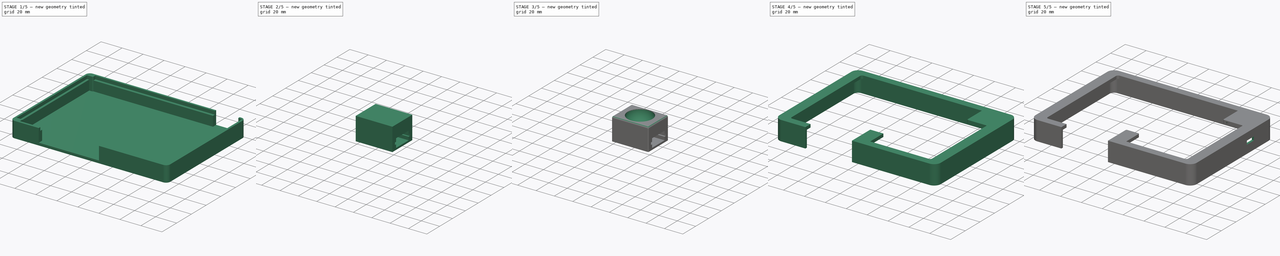
[diagram: build sequence overview — one tinted view per stage of 5, left to right]
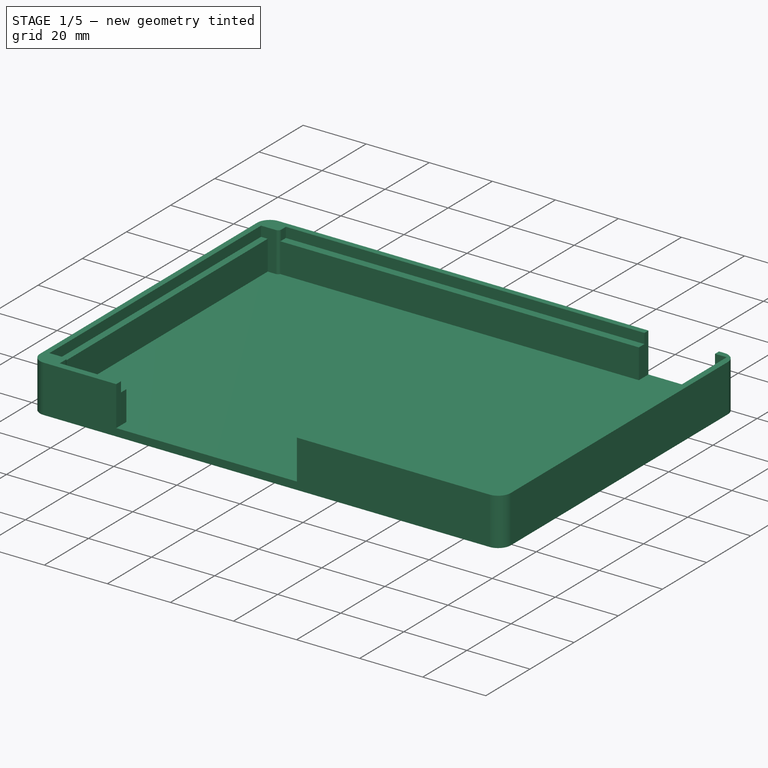
[diagram: stage 1 of 5 — iso view after this stage's code; geometry added in this stage tinted green]
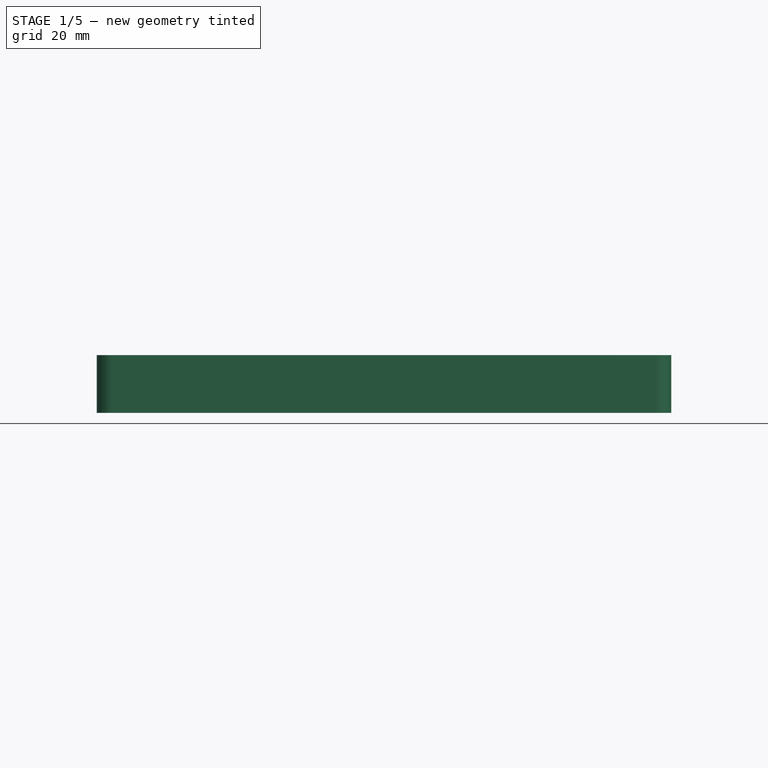
[diagram: stage 1 of 5 — front view after this stage's code; geometry added in this stage tinted green]
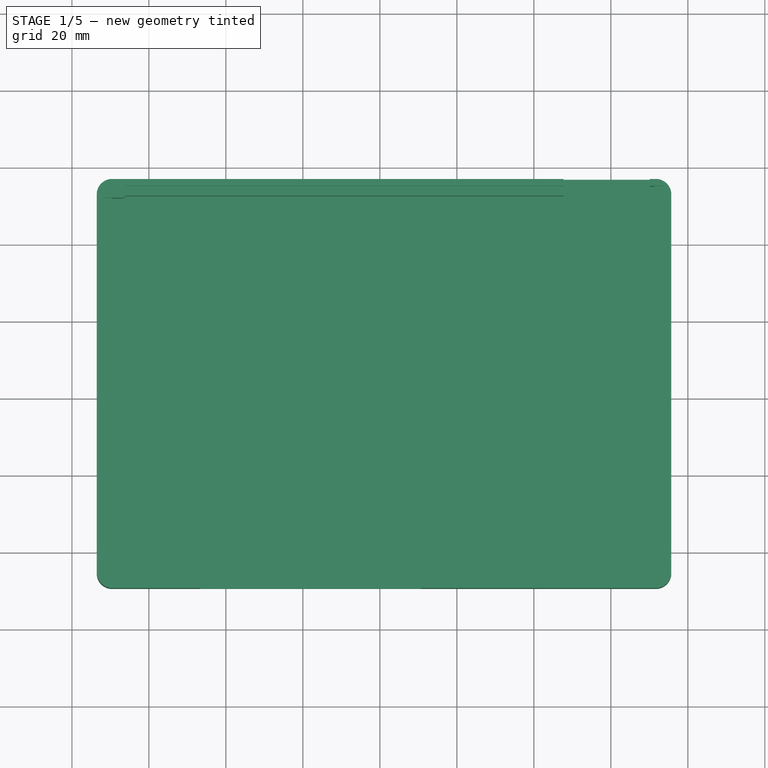
[diagram: stage 1 of 5 — top view after this stage's code; geometry added in this stage tinted green]
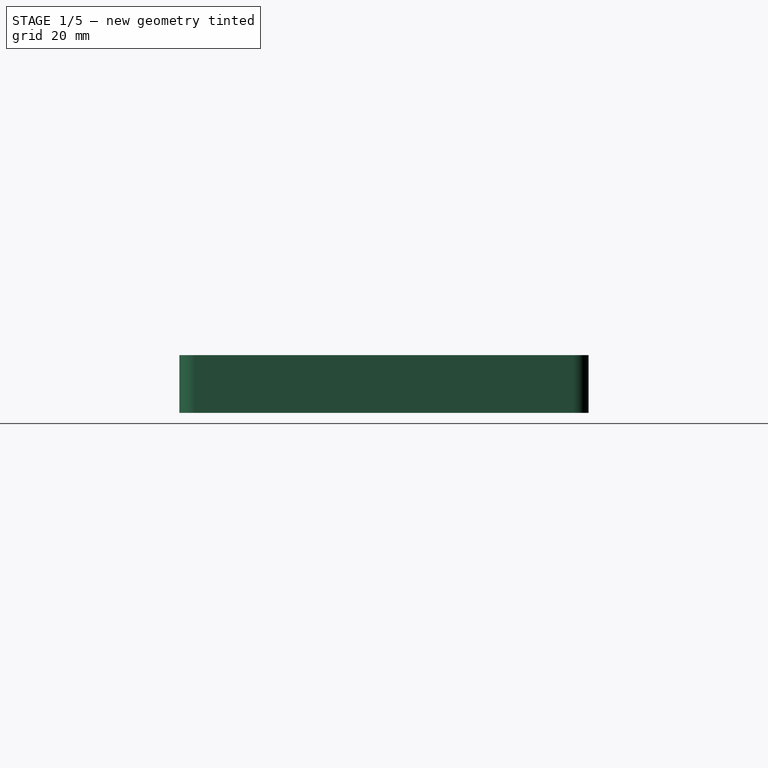
[diagram: stage 1 of 5 — right view after this stage's code; geometry added in this stage tinted green]
FCSTD DOCUMENT  (FreeCAD 1.0R39109 (Git))
Label: right_v1
License: All rights reserved
LicenseURL: https://en.wikipedia.org/wiki/All_rights_reserved
objects: Sketcher::SketchObject×15, PartDesign::Pocket×7, Measure::MeasureLength×7, PartDesign::Pad×6, PartDesign::Fillet×6, PartDesign::ShapeBinder×4, PartDesign::Body×3, Measure::MeasureDistance×3, PartDesign::SubShapeBinder×1, PartDesign::Line×1, Part::Feature×1, App::Part×1, PartDesign::Groove×1, PartDesign::Point×1, PartDesign::SubtractiveSphere×1, PartDesign::PolarPattern×1, App::DocumentObjectGroup×1
note: 106 computed .brp shape members not serialized (recipe doc carries the construction recipe); baked Part::Feature solids carry a one-line shape summary decoded from their .brp

FEATURE [Sketcher::SketchObject] Sketch
  ArcFitTolerance = 1e-06
  FullyConstrained = false
  MakeInternals = false
  sketch-geometry (21):
    g0: LineSegment StartX=230.1 StartY=-24.9 StartZ=0 EndX=233.8 EndY=-24.9 EndZ=0
    g1: LineSegment StartX=207.7 StartY=-23.1 StartZ=0 EndX=230.1 EndY=-23.1 EndZ=0
    g2: LineSegment StartX=207.7 StartY=-24.9 StartZ=0 EndX=207.7 EndY=-23.1 EndZ=0
    g3: LineSegment StartX=230.1 StartY=-24.9 StartZ=0 EndX=230.1 EndY=-23.1 EndZ=0
    g4: LineSegment StartX=228 StartY=-127.2 StartZ=0 EndX=228 EndY=-125 EndZ=0
    g5: LineSegment StartX=233.8 StartY=-124 StartZ=0 EndX=233.8 EndY=-24.9 EndZ=0
    g6: LineSegment StartX=93 StartY=-28 StartZ=0 EndX=88.3 EndY=-28 EndZ=0
    g7: LineSegment StartX=88.3 StartY=-28 StartZ=0 EndX=88.2 EndY=-123.7 EndZ=0
    g8: LineSegment StartX=88.2 StartY=-123.7 StartZ=0 EndX=93 EndY=-123.7 EndZ=0
    g9: LineSegment StartX=170.5 StartY=-104.4 StartZ=0 EndX=170.5 EndY=-127.2 EndZ=0
    g10: LineSegment StartX=113.4 StartY=-127.2 StartZ=0 EndX=113.5 EndY=-104.4 EndZ=0
    g11: LineSegment StartX=94 StartY=-24.9 StartZ=0 EndX=94 EndY=-27 EndZ=0
    g12: LineSegment StartX=94 StartY=-127.3 StartZ=0 EndX=113.4 EndY=-127.2 EndZ=0
    g13: LineSegment StartX=94 StartY=-124.7 StartZ=0 EndX=94 EndY=-127.3 EndZ=0
    g14: LineSegment StartX=207.7 StartY=-24.9 StartZ=0 EndX=94 EndY=-24.9 EndZ=0
    g15: LineSegment StartX=170.5 StartY=-127.2 StartZ=0 EndX=228 EndY=-127.2 EndZ=0
    g16: LineSegment StartX=233.8 StartY=-124 StartZ=0 EndX=229 EndY=-124 EndZ=0
    g17: LineSegment StartX=113.5 StartY=-104.4 StartZ=0 EndX=170.5 EndY=-104.4 EndZ=0
    g18: ArcOfCircle CenterX=229 CenterY=-125 CenterZ=0 NormalX=0 NormalY=0 NormalZ=1 AngleXU=0 Radius=0.999998 StartAngle=1.5708 EndAngle=3.14159
    g19: ArcOfCircle CenterX=93 CenterY=-124.7 CenterZ=0 NormalX=0 NormalY=0 NormalZ=1 AngleXU=0 Radius=0.999998 StartAngle=0 EndAngle=1.5708
    g20: ArcOfCircle CenterX=93 CenterY=-27 CenterZ=0 NormalX=0 NormalY=0 NormalZ=1 AngleXU=0 Radius=0.999998 StartAngle=4.71239 EndAngle=6.28319
  constraints (15):
    c: Horizontal(g0)
    c: Horizontal(g1)
    c: Vertical(g2)
    c: Vertical(g3)
    c: Vertical(g4)
    c: Vertical(g5)
    c: Horizontal(g6)
    c: Horizontal(g8)
    c: Vertical(g9)
    c: Vertical(g11)
    c: Vertical(g13)
    c: Horizontal(g14)
    c: Horizontal(g15)
    c: Horizontal(g16)
    c: Horizontal(g17)
FEATURE [Sketcher::SketchObject] Sketch001
  ArcFitTolerance = 1e-06
  FullyConstrained = true
  MakeInternals = false
  sketch-geometry (8):
    g0: LineSegment StartX=231.7 StartY=-23.1 StartZ=0 EndX=90.44 EndY=-23.1 EndZ=0
    g1: LineSegment StartX=235.7 StartY=-27.1 StartZ=0 EndX=235.7 EndY=-125.39 EndZ=0
    g2: LineSegment StartX=90.44 StartY=-129.39 StartZ=0 EndX=231.7 EndY=-129.39 EndZ=0
    g3: LineSegment StartX=86.44 StartY=-27.1 StartZ=0 EndX=86.44 EndY=-125.39 EndZ=0
    g4: ArcOfCircle CenterX=90.44 CenterY=-125.39 CenterZ=0 NormalX=0 NormalY=0 NormalZ=1 AngleXU=0 Radius=4 StartAngle=3.14159 EndAngle=4.71239
    g5: ArcOfCircle CenterX=90.44 CenterY=-27.1 CenterZ=0 NormalX=0 NormalY=0 NormalZ=1 AngleXU=0 Radius=4 StartAngle=1.5708 EndAngle=3.14159
    g6: ArcOfCircle CenterX=231.7 CenterY=-27.1 CenterZ=0 NormalX=0 NormalY=0 NormalZ=1 AngleXU=0 Radius=4 StartAngle=0 EndAngle=1.5708
    g7: ArcOfCircle CenterX=231.7 CenterY=-125.39 CenterZ=0 NormalX=0 NormalY=0 NormalZ=1 AngleXU=0 Radius=4 StartAngle=4.71239 EndAngle=6.28319
  constraints (20):
    c: Horizontal(g0)
    c: Vertical(g1)
    c: Vertical(g3)
    c: Radius(g5) = 4
    c: Radius(g4) = 4
    c: Radius(g7) = 4
    c: Radius(g6) = 4
    c: Horizontal(g2)
    c: Tangent(g5,g0) = -1.5708
    c: Tangent(g5,g3) = -1.5708
    c: Tangent(g4,g3) = -1.5708
    c: Tangent(g4,g2) = -1.5708
    c: Tangent(g7,g2) = -1.5708
    c: Tangent(g7,g1) = 1.5708
    c: Tangent(g6,g1) = 1.5708
    c: Tangent(g6,g0) = -1.5708
    c: DistanceX(g0,g0) = 141.26
    c: DistanceY(g3,g3) = 98.29
    c: DistanceY(g0,g-1) = 23.1
    c: DistanceX(g-1,g3) = 86.44
FEATURE [PartDesign::Pad] Pad
  Direction = (0,0,1)
  Length = 15
  Length2 = 10
  Profile = -> Sketch001
  ReferenceAxis = -> Sketch001 [N_Axis]
  Refine = true
  Reversed = true
  Suppressed = false
  Type = 0
FEATURE [Sketcher::SketchObject] Sketch002
  ArcFitTolerance = 1e-06
  FullyConstrained = false
  MakeInternals = false
  MapMode = 5
  sketch-geometry (4):
    g0: LineSegment StartX=113.359 StartY=-104.168 StartZ=0 EndX=113.359 EndY=-130.997 EndZ=0
    g1: LineSegment StartX=113.359 StartY=-130.997 StartZ=0 EndX=170.657 EndY=-130.997 EndZ=0
    g2: LineSegment StartX=170.657 StartY=-130.997 StartZ=0 EndX=170.657 EndY=-104.168 EndZ=0
    g3: LineSegment StartX=170.657 StartY=-104.168 StartZ=0 EndX=113.359 EndY=-104.168 EndZ=0
  constraints (8):
    c: Coincident(g0,g1)
    c: Coincident(g1,g2)
    c: Coincident(g2,g3)
    c: Coincident(g3,g0)
    c: Vertical(g0)
    c: Vertical(g2)
    c: Horizontal(g1)
    c: Horizontal(g3)
FEATURE [Sketcher::SketchObject] Sketch003
  ArcFitTolerance = 1e-06
  FullyConstrained = false
  MakeInternals = false
  MapMode = 5
  Placement = pos=(0,0,-12.6) rot=(0,0,1;0rad)
  sketch-geometry (20):
    g0: LineSegment StartX=87.9168 StartY=-27.7283 StartZ=0 EndX=87.9168 EndY=-124.349 EndZ=0
    g1: LineSegment StartX=87.9168 StartY=-124.349 StartZ=0 EndX=90.4168 EndY=-124.349 EndZ=0
    g2: LineSegment StartX=90.4168 StartY=-124.349 StartZ=0 EndX=90.4168 EndY=-27.7283 EndZ=0
    g3: LineSegment StartX=90.4168 StartY=-27.7283 StartZ=0 EndX=87.9168 EndY=-27.7283 EndZ=0
    g4: LineSegment StartX=93.9895 StartY=-24.8925 StartZ=0 EndX=93.9895 EndY=-27.3925 EndZ=0
    g5: LineSegment StartX=93.9895 StartY=-27.3925 StartZ=0 EndX=207.7 EndY=-27.3925 EndZ=0
    g6: LineSegment StartX=207.7 StartY=-27.3925 StartZ=0 EndX=207.7 EndY=-24.8925 EndZ=0
    g7: LineSegment StartX=207.7 StartY=-24.8925 StartZ=0 EndX=93.9895 EndY=-24.8925 EndZ=0
    g8: LineSegment StartX=233.814 StartY=-24.8979 StartZ=0 EndX=231.314 EndY=-24.8979 EndZ=0
    g9: LineSegment StartX=231.314 StartY=-24.8979 StartZ=0 EndX=231.314 EndY=-124.12 EndZ=0
    g10: LineSegment StartX=231.314 StartY=-124.12 StartZ=0 EndX=233.814 EndY=-124.12 EndZ=0
    g11: LineSegment StartX=233.814 StartY=-124.12 StartZ=0 EndX=233.814 EndY=-24.8979 EndZ=0
    g12: LineSegment StartX=228.055 StartY=-127.255 StartZ=0 EndX=228.055 EndY=-124.755 EndZ=0
    g13: LineSegment StartX=228.055 StartY=-124.755 StartZ=0 EndX=170.655 EndY=-124.755 EndZ=0
    g14: LineSegment StartX=170.655 StartY=-124.755 StartZ=0 EndX=170.655 EndY=-127.255 EndZ=0
    g15: LineSegment StartX=170.655 StartY=-127.255 StartZ=0 EndX=228.055 EndY=-127.255 EndZ=0
    g16: LineSegment StartX=93.9835 StartY=-127.306 StartZ=0 EndX=113.363 EndY=-127.306 EndZ=0
    g17: LineSegment StartX=113.363 StartY=-127.306 StartZ=0 EndX=113.363 EndY=-124.806 EndZ=0
    g18: LineSegment StartX=113.363 StartY=-124.806 StartZ=0 EndX=93.9835 EndY=-124.806 EndZ=0
    g19: LineSegment StartX=93.9835 StartY=-124.806 StartZ=0 EndX=93.9835 EndY=-127.306 EndZ=0
  constraints (48):
    c: Coincident(g0,g1)
    c: Coincident(g1,g2)
    c: Coincident(g2,g3)
    c: Coincident(g3,g0)
    c: Vertical(g0)
    c: Vertical(g2)
    c: Horizontal(g1)
    c: Horizontal(g3)
    c: Distance(g0,g2) = 2.5
    c: Coincident(g4,g5)
    c: Coincident(g5,g6)
    c: Coincident(g6,g7)
    c: Coincident(g7,g4)
    c: Vertical(g4)
    c: Vertical(g6)
    c: Horizontal(g5)
    c: Horizontal(g7)
    c: Distance(g4,g6) = 113.71
    c: Distance(g5,g7) = 2.5
    c: Coincident(g8,g9)
    c: Coincident(g9,g10)
    c: Coincident(g10,g11)
    c: Coincident(g11,g8)
    c: Horizontal(g8)
    c: Horizontal(g10)
    c: Vertical(g9)
    c: Vertical(g11)
    c: Distance(g9,g11) = 2.5
    c: Coincident(g12,g13)
    c: Coincident(g13,g14)
    c: Coincident(g14,g15)
    c: Coincident(g15,g12)
    c: Vertical(g12)
    c: Vertical(g14)
    c: Horizontal(g13)
    c: Horizontal(g15)
    c: Distance(g12,g14) = 57.4
    c: Distance(g13,g15) = 2.5
    c: Coincident(g16,g17)
    c: Coincident(g17,g18)
    c: Coincident(g18,g19)
    c: Coincident(g19,g16)
    c: Horizontal(g16)
    c: Horizontal(g18)
    c: Vertical(g17)
    c: Vertical(g19)
    c: Distance(g17,g19) = 19.38
    c: Distance(g16,g18) = 2.5
FEATURE [PartDesign::Pocket] Pocket
  BaseFeature = -> Pad
  Direction = (0,0,-1)
  Length = 12.6
  Length2 = 5
  Profile = -> Sketch
  ReferenceAxis = -> Sketch [N_Axis]
  Refine = true
  Suppressed = false
  Type = 0
FEATURE [PartDesign::Pocket] Pocket001
  BaseFeature = -> Pocket
  Direction = (0,0,-1)
  Length = 12.6
  Length2 = 5
  Profile = -> Sketch002
  ReferenceAxis = -> Sketch002 [N_Axis]
  Refine = true
  Suppressed = false
  Type = 0
FEATURE [PartDesign::Pad] Pad001
  BaseFeature = -> Pocket001
  Direction = (0,0,1)
  Length = 9.4
  Length2 = 10
  Profile = -> Sketch003
  ReferenceAxis = -> Sketch003 [N_Axis]
  Refine = true
  Suppressed = false
  Type = 0
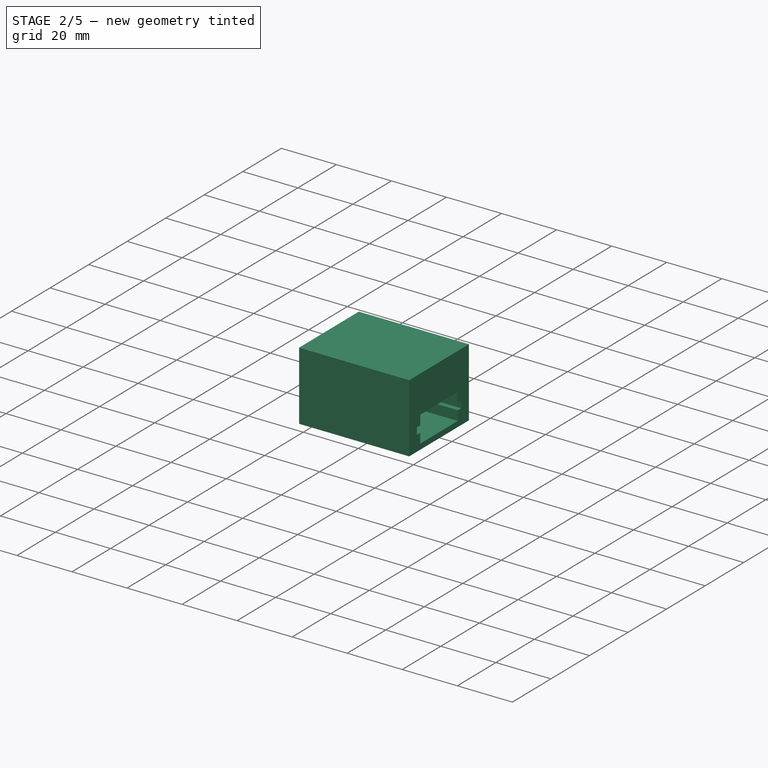
[diagram: stage 2 of 5 — iso view after this stage's code; geometry added in this stage tinted green]
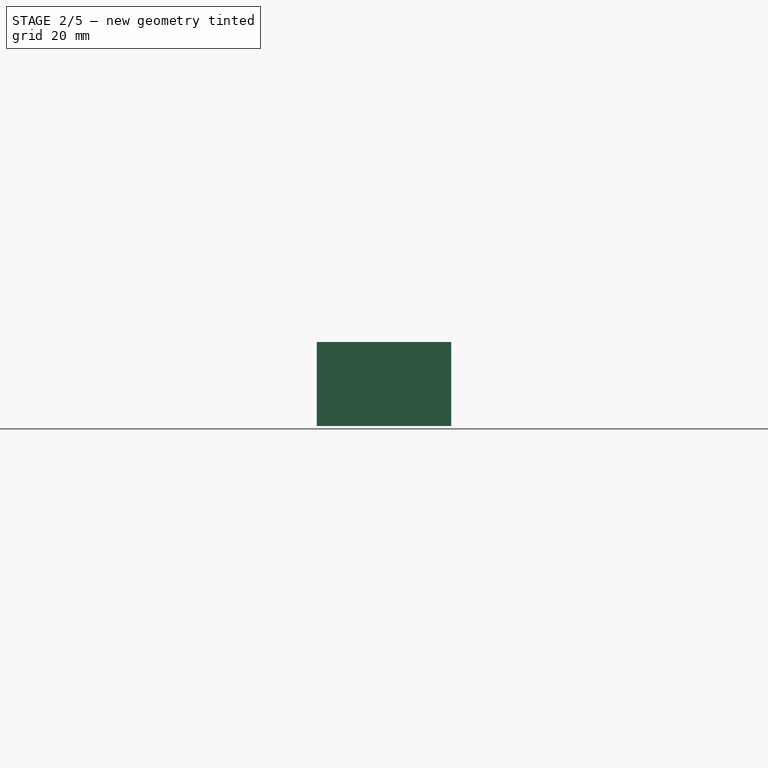
[diagram: stage 2 of 5 — front view after this stage's code; geometry added in this stage tinted green]
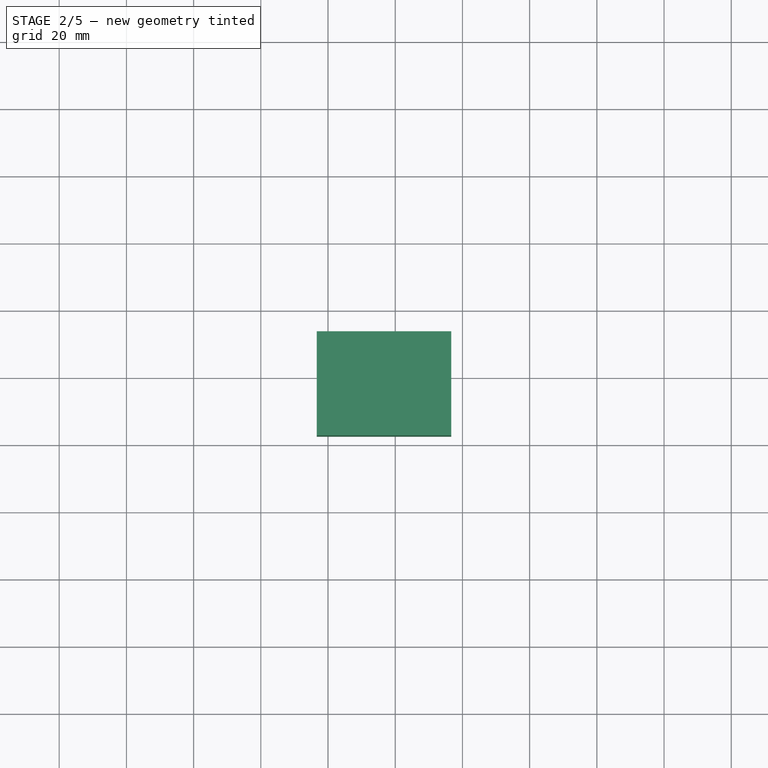
[diagram: stage 2 of 5 — top view after this stage's code; geometry added in this stage tinted green]
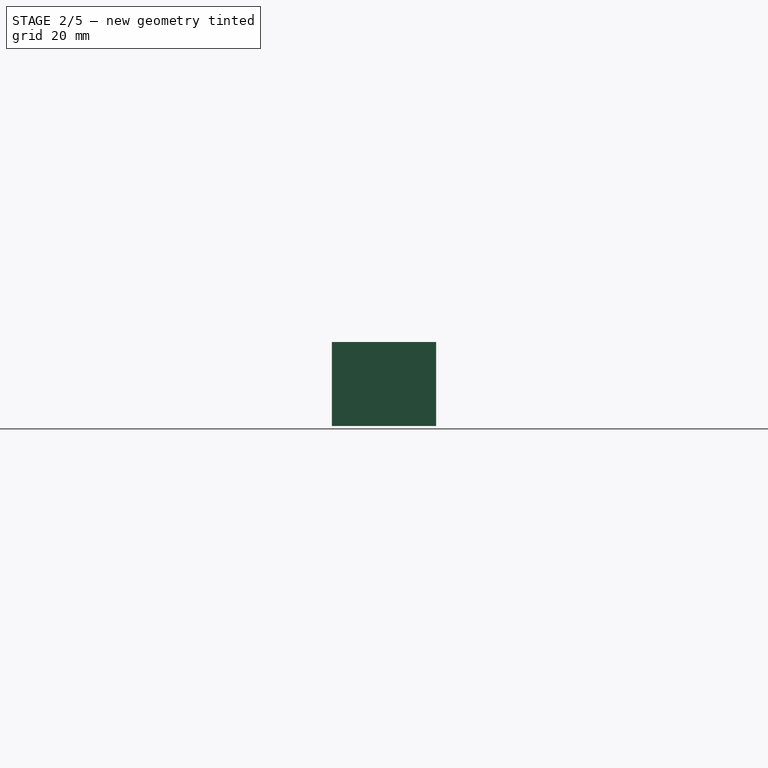
[diagram: stage 2 of 5 — right view after this stage's code; geometry added in this stage tinted green]
FEATURE [Sketcher::SketchObject] Sketch005
  ArcFitTolerance = 1e-06
  AttachmentSupport = -> [Pad001]
  FullyConstrained = false
  MakeInternals = false
  MapMode = 5
  sketch-geometry (4):
    g0: LineSegment StartX=239.933 StartY=-46.9665 StartZ=0 EndX=224.933 EndY=-46.9665 EndZ=0
    g1: LineSegment StartX=224.933 StartY=-46.9665 StartZ=0 EndX=224.933 EndY=-56.9665 EndZ=0
    g2: LineSegment StartX=224.933 StartY=-56.9665 StartZ=0 EndX=239.933 EndY=-56.9665 EndZ=0
    g3: LineSegment StartX=239.933 StartY=-56.9665 StartZ=0 EndX=239.933 EndY=-46.9665 EndZ=0
  constraints (10):
    c: Coincident(g0,g1)
    c: Coincident(g1,g2)
    c: Coincident(g2,g3)
    c: Coincident(g3,g0)
    c: Horizontal(g0)
    c: Horizontal(g2)
    c: Vertical(g1)
    c: Vertical(g3)
    c: Distance(g1,g3) = 15
    c: Distance(g0,g2) = 10
FEATURE [PartDesign::Pocket] Pocket002
  BaseFeature = -> Pad001
  Direction = (0,0,-1)
  Length = 12.6
  Length2 = 5
  Profile = -> Sketch005
  ReferenceAxis = -> Sketch005 [N_Axis]
  Refine = true
  Suppressed = false
  Type = 0
FEATURE [PartDesign::Fillet] Fillet
  Base = -> Pocket002 [Edge6]
  BaseFeature = -> Pocket002
  Radius = 1
  Refine = true
  SupportTransform = false
  Suppressed = false
  UseAllEdges = false
FEATURE [PartDesign::Fillet] Fillet001
  Base = -> Fillet [Edge8]
  BaseFeature = -> Fillet
  Radius = 1
  Refine = true
  SupportTransform = false
  Suppressed = false
  UseAllEdges = false
FEATURE [PartDesign::ShapeBinder] ShapeBinder001
  Support = -> [Fillet001]
  TraceSupport = false
FEATURE [PartDesign::SubShapeBinder] Binder
  BindCopyOnChange = 0
  BindMode = 0
  ClaimChildren = false
  Context = -> Body002 [Binder.]
  Fuse = false
  MakeFace = true
  OffsetFill = false
  OffsetIntersection = false
  OffsetJoinType = 0
  OffsetOpenResult = false
  PartialLoad = false
  Refine = true
  Relative = true
  Support = -> [Body]
  _Version = 2
FEATURE [PartDesign::Line] DatumLine
  AttacherType = Attacher::AttachEngineLine
  Length = 20
  MapMode = 42
  Placement = pos=(136.622,-121.77,9.07907) rot=(0.001527,0.001527,0.999998;1.5708rad)
  ResizeMode = 0
FEATURE [PartDesign::ShapeBinder] ShapeBinder003
  Support = -> [Fillet001]
  TraceSupport = false
FEATURE [Part::Feature] Part__Feature  label="symphonie6_right_PCB"
  Placement = pos=(-12.2,9,-1.6) rot=(0,0,1;0rad)
  shape: bbox 144.4 x 101 x 1.6 mm, 149 faces (baked)
FEATURE [App::Part] keybaord_1  label="keybaord 1"
  Group = -> [Part__Feature]
  Origin = -> Origin005
FEATURE [Sketcher::SketchObject] Sketch015
  ArcFitTolerance = 1e-06
  AttachmentSupport = -> [Fillet001]
  ExternalGeometry = -> [Fillet001]
  FullyConstrained = true
  MakeInternals = false
  MapMode = 5
  Placement = pos=(0,0,-3.2) rot=(0,0,1;0rad)
  sketch-geometry (4):
    g0: LineSegment StartX=231.314 StartY=-24.9 StartZ=0 EndX=231.314 EndY=-46.9665 EndZ=0
    g1: LineSegment StartX=231.314 StartY=-46.9665 StartZ=0 EndX=233.8 EndY=-46.9665 EndZ=0
    g2: LineSegment StartX=233.8 StartY=-46.9665 StartZ=0 EndX=233.8 EndY=-24.9 EndZ=0
    g3: LineSegment StartX=233.8 StartY=-24.9 StartZ=0 EndX=231.314 EndY=-24.9 EndZ=0
  constraints (10):
    c: Coincident(g0,g1)
    c: Coincident(g1,g2)
    c: Coincident(g2,g3)
    c: Coincident(g3,g0)
    c: Vertical(g0)
    c: Vertical(g2)
    c: Horizontal(g1)
    c: Horizontal(g3)
    c: Coincident(g0,g-3)
    c: Coincident(g1,g-5)
FEATURE [PartDesign::Body] Body  label="BottomCase"
  AllowCompound = false
  Group = -> [Sketch,Sketch001,Pad,Sketch002,Sketch003,Pocket,Pocket001,Pad001,Sketch005,Pocket002,Fillet,Fillet001,Sketch015]
  Origin = -> Origin
  Tip = -> Fillet001
FEATURE [Measure::MeasureLength] Length  label="Length: 12.60 mm"
  Elements = -> [Body]
  Length = 12.6
FEATURE [PartDesign::ShapeBinder] ShapeBinder
  Support = -> [Body]
  TraceSupport = false
FEATURE [Sketcher::SketchObject] Sketch006
  ArcFitTolerance = 1e-06
  AttachmentSupport = -> [ShapeBinder]
  ExternalGeometry = -> [ShapeBinder]
  FullyConstrained = true
  MakeInternals = false
  MapMode = 5
  Placement = pos=(0,0,-12.6) rot=(0,0,1;0rad)
  sketch-geometry (4):
    g0: LineSegment StartX=116.657 StartY=-106.39 StartZ=0 EndX=116.657 EndY=-137.39 EndZ=0
    g1: LineSegment StartX=116.657 StartY=-137.39 StartZ=0 EndX=156.657 EndY=-137.39 EndZ=0
    g2: LineSegment StartX=156.657 StartY=-137.39 StartZ=0 EndX=156.657 EndY=-106.39 EndZ=0
    g3: LineSegment StartX=156.657 StartY=-106.39 StartZ=0 EndX=116.657 EndY=-106.39 EndZ=0
  constraints (12):
    c: Coincident(g0,g1)
    c: Coincident(g1,g2)
    c: Coincident(g2,g3)
    c: Coincident(g3,g0)
    c: Vertical(g0)
    c: Vertical(g2)
    c: Horizontal(g1)
    c: Horizontal(g3)
    c: Distance(g0,g2) = 40
    c: Distance(g1,g3) = 31
    c: DistanceY(g-4,g2) = 23
    c: DistanceX(g1,g-4) = 14
FEATURE [PartDesign::Pad] Pad002
  Direction = (0,0,1)
  Length = 25
  Length2 = 10
  Profile = -> Sketch006
  ReferenceAxis = -> Sketch006 [N_Axis]
  Refine = true
  Suppressed = false
  Type = 0
FEATURE [Sketcher::SketchObject] Sketch007
  ArcFitTolerance = 1e-06
  AttachmentSupport = -> [Pad002]
  ExternalGeometry = -> [Pad002]
  FullyConstrained = true
  MakeInternals = false
  MapMode = 5
  Placement = pos=(156.657,0,0) rot=(0.57735,0.57735,0.57735;2.0944rad)
  sketch-geometry (12):
    g0: LineSegment StartX=-112.14 StartY=-1.1 StartZ=0 EndX=-131.64 EndY=-1.1 EndZ=0
    g1: LineSegment StartX=-131.64 StartY=-1.1 StartZ=0 EndX=-131.64 EndY=-4.6 EndZ=0
    g2: LineSegment StartX=-131.64 StartY=-4.6 StartZ=0 EndX=-133.39 EndY=-4.6 EndZ=0
    g3: LineSegment StartX=-133.39 StartY=-4.6 StartZ=0 EndX=-133.39 EndY=-7.1 EndZ=0
    g4: LineSegment StartX=-133.39 StartY=-7.1 StartZ=0 EndX=-131.64 EndY=-7.1 EndZ=0
    g5: LineSegment StartX=-131.64 StartY=-7.1 StartZ=0 EndX=-131.64 EndY=-10.6 EndZ=0
    g6: LineSegment StartX=-131.64 StartY=-10.6 StartZ=0 EndX=-112.14 EndY=-10.6 EndZ=0
    g7: LineSegment StartX=-112.14 StartY=-10.6 StartZ=0 EndX=-112.14 EndY=-7.1 EndZ=0
    g8: LineSegment StartX=-112.14 StartY=-7.1 StartZ=0 EndX=-110.39 EndY=-7.1 EndZ=0
    g9: LineSegment StartX=-110.39 StartY=-7.1 StartZ=0 EndX=-110.39 EndY=-4.6 EndZ=0
    g10: LineSegment StartX=-110.39 StartY=-4.6 StartZ=0 EndX=-112.14 EndY=-4.6 EndZ=0
    g11: LineSegment StartX=-112.14 StartY=-4.6 StartZ=0 EndX=-112.14 EndY=-1.1 EndZ=0
  constraints (36):
    c: Horizontal(g0)
    c: Coincident(g0,g1)
    c: Vertical(g1)
    c: Coincident(g1,g2)
    c: Horizontal(g2)
    c: Coincident(g2,g3)
    c: Vertical(g3)
    c: Coincident(g3,g4)
    c: Horizontal(g4)
    c: Coincident(g4,g5)
    c: Vertical(g5)
    c: Coincident(g5,g6)
    c: Horizontal(g6)
    c: Coincident(g6,g7)
    c: Coincident(g7,g8)
    c: Coincident(g8,g9)
    c: Vertical(g9)
    c: Coincident(g9,g10)
    c: Coincident(g10,g11)
    c: Coincident(g11,g0)
    c: Vertical(g11)
    c: Horizontal(g10)
    c: Horizontal(g8)
    c: Vertical(g7)
    c: DistanceX(g2,g9) = 23
    c: DistanceX(g0,g0) = 19.5
    c: DistanceX(g5,g6) = 19.5
    c: DistanceX(g4,g1) = 0
    c: DistanceY(g-3,g6) = 2
    c: DistanceY(g10,g0) = 3.5
    c: DistanceY(g8,g9) = 2.5
    c: DistanceY(g3,g2) = 2.5
    c: DistanceY(g1,g0) = 3.5
    c: DistanceX(g2,g1) = 1.75
    c: DistanceX(g8,g-3) = 4
    c: DistanceY(g6,g7) = 3.5
FEATURE [PartDesign::Pocket] Pocket003
  BaseFeature = -> Pad002
  Direction = (-1,0,0)
  Length = 26
  Length2 = 5
  Profile = -> Sketch007
  ReferenceAxis = -> Sketch007 [N_Axis]
  Refine = true
  Suppressed = false
  Type = 0
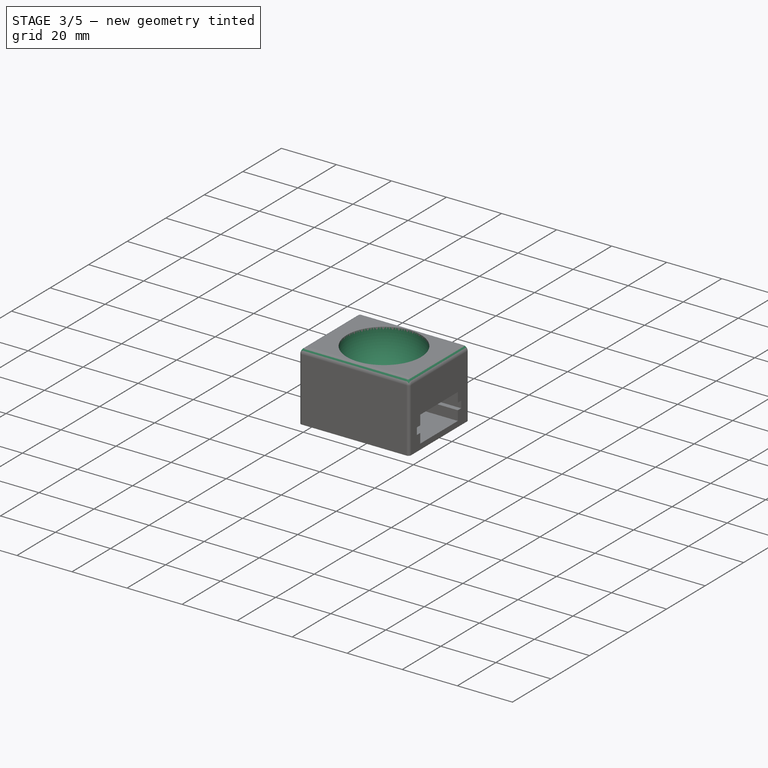
[diagram: stage 3 of 5 — iso view after this stage's code; geometry added in this stage tinted green]
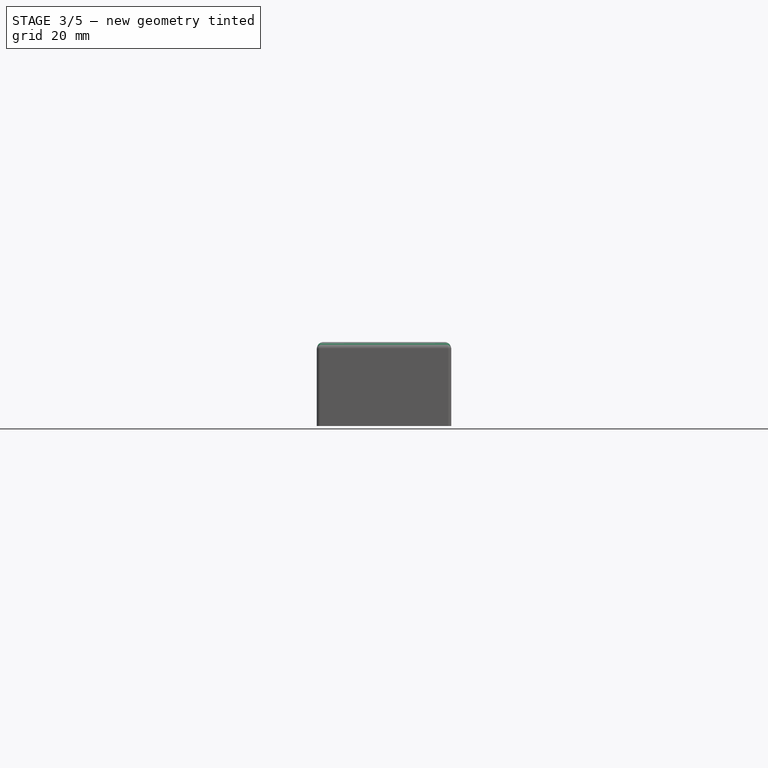
[diagram: stage 3 of 5 — front view after this stage's code; geometry added in this stage tinted green]
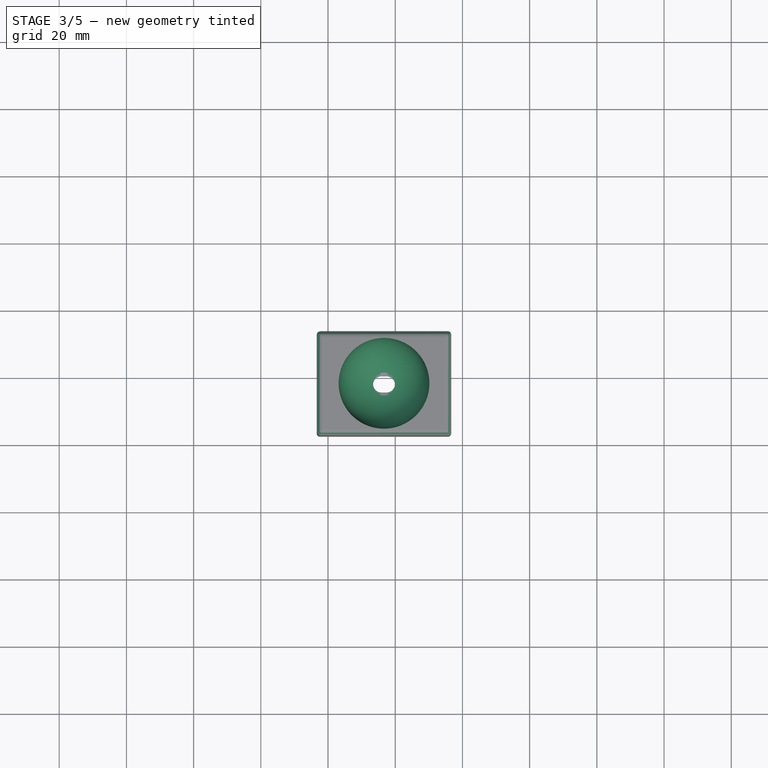
[diagram: stage 3 of 5 — top view after this stage's code; geometry added in this stage tinted green]
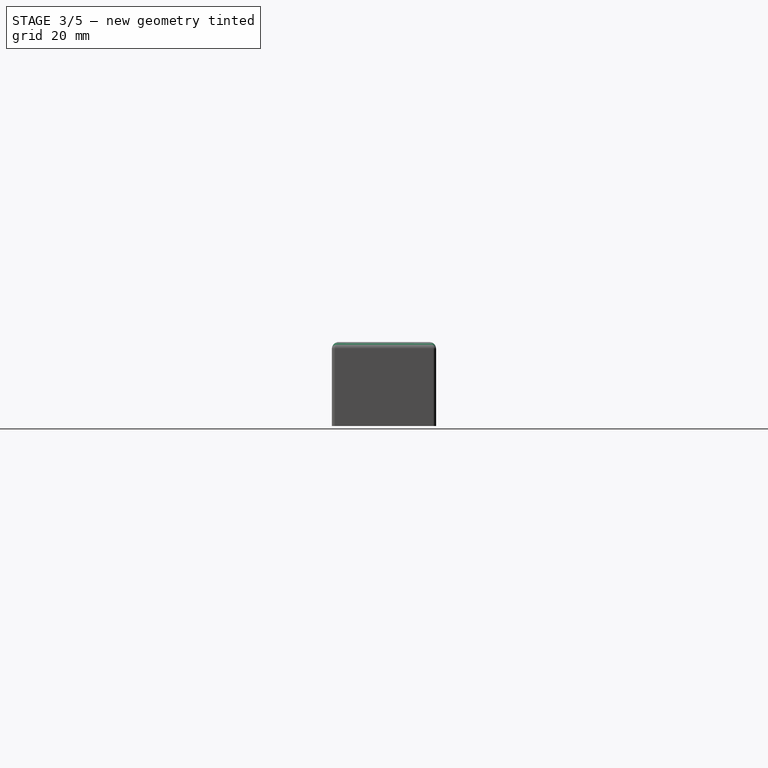
[diagram: stage 3 of 5 — right view after this stage's code; geometry added in this stage tinted green]
FEATURE [Sketcher::SketchObject] Sketch008
  ArcFitTolerance = 1e-06
  AttachmentSupport = -> [Pocket003]
  ExternalGeometry = -> [Pocket003]
  FullyConstrained = true
  MakeInternals = false
  MapMode = 5
  Placement = pos=(0,0,12.4) rot=(0,0,1;0rad)
  sketch-geometry (6):
    g0: ArcOfCircle CenterX=135.907 CenterY=-121.89 CenterZ=0 NormalX=0 NormalY=0 NormalZ=1 AngleXU=0 Radius=2.5 StartAngle=1.5708 EndAngle=4.71239
    g1: ArcOfCircle CenterX=137.407 CenterY=-121.89 CenterZ=0 NormalX=0 NormalY=0 NormalZ=1 AngleXU=0 Radius=2.5 StartAngle=4.71239 EndAngle=7.85398
    g2: LineSegment StartX=135.907 StartY=-119.39 StartZ=0 EndX=137.407 EndY=-119.39 EndZ=0
    g3: LineSegment StartX=135.907 StartY=-124.39 StartZ=0 EndX=137.407 EndY=-124.39 EndZ=0
    g4: LineSegment [constr] StartX=135.907 StartY=-121.89 StartZ=0 EndX=137.407 EndY=-121.89 EndZ=0
    g5: GeomPoint [constr] X=136.657 Y=-121.89 Z=0
  constraints (13):
    c: Tangent(g0,g2) = 1.5708
    c: Tangent(g0,g3) = -1.5708
    c: Tangent(g1,g2) = 1.5708
    c: Tangent(g1,g3) = -1.5708
    c: Equal(g0,g1)
    c: Distance(g1,g1) = 5
    c: Coincident(g4,g0)
    c: Coincident(g4,g1)
    c: Symmetric(g4,g4,g5)
    c: Distance(g0,g1) = 1.5
    c: Horizontal(g3)
    c: DistanceX(g5,g-4) = 20
    c: DistanceY(g-4,g5) = 15.5
FEATURE [PartDesign::Pocket] Pocket004
  BaseFeature = -> Pocket003
  Direction = (0,0,-1)
  Length = 5
  Length2 = 5
  Profile = -> Sketch008
  ReferenceAxis = -> Sketch008 [N_Axis]
  Refine = true
  Suppressed = false
  Type = 1
FEATURE [Sketcher::SketchObject] Sketch009
  ArcFitTolerance = 1e-06
  AttachmentOffset = pos=(0,0,-15.5) rot=(0,0,1;0rad)
  AttachmentSupport = -> [Pocket004]
  ExternalGeometry = -> [Pocket004]
  FullyConstrained = true
  MakeInternals = false
  MapMode = 5
  Placement = pos=(0,-121.89,-3.4e-15) rot=(1,0,0;1.5708rad)
  sketch-geometry (3):
    g0: ArcOfCircle CenterX=136.657 CenterY=12.4 CenterZ=0 NormalX=0 NormalY=0 NormalZ=1 AngleXU=0 Radius=13.5 StartAngle=4.71239 EndAngle=6.28319
    g1: LineSegment StartX=136.657 StartY=-1.1 StartZ=0 EndX=136.657 EndY=12.4 EndZ=0
    g2: LineSegment StartX=136.657 StartY=12.4 StartZ=0 EndX=150.157 EndY=12.4 EndZ=0
  constraints (8):
    c: Radius(g0) = 13.5
    c: Symmetric(g-3,g-3,g0)
    c: PointOnObject(g0,g-3)
    c: Coincident(g1,g0)
    c: Coincident(g1,g0)
    c: Vertical(g1)
    c: Coincident(g2,g0)
    c: Coincident(g2,g0)
FEATURE [PartDesign::Groove] Groove
  Angle = 360
  Angle2 = 60
  Axis = (0,2e-16,1)
  Base = (136.657,-121.89,-1.1)
  BaseFeature = -> Pocket004
  Profile = -> Sketch009
  ReferenceAxis = -> Sketch009 [Edge3]
  Refine = true
  Reversed = true
  Suppressed = false
  Type = 0
FEATURE [Measure::MeasureLength] Length003  label="Length003: 15.00 mm"
  Elements = -> [Body]
  Length = 15
FEATURE [PartDesign::Fillet] Fillet002
  Base = -> Groove [Edge4,Edge7,Edge16,Edge10]
  BaseFeature = -> Groove
  Radius = 2
  Refine = true
  SupportTransform = false
  Suppressed = false
  UseAllEdges = false
FEATURE [PartDesign::Fillet] Fillet003
  Base = -> Fillet002 [Edge1,Edge4,Edge18,Edge5]
  BaseFeature = -> Fillet002
  Radius = 1
  Refine = true
  SupportTransform = false
  Suppressed = false
  UseAllEdges = false
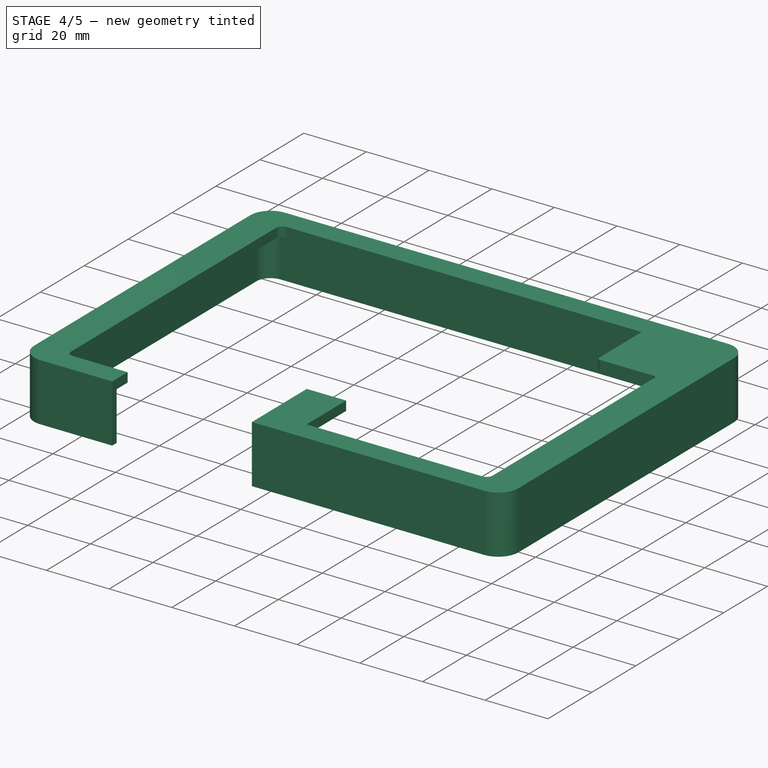
[diagram: stage 4 of 5 — iso view after this stage's code; geometry added in this stage tinted green]
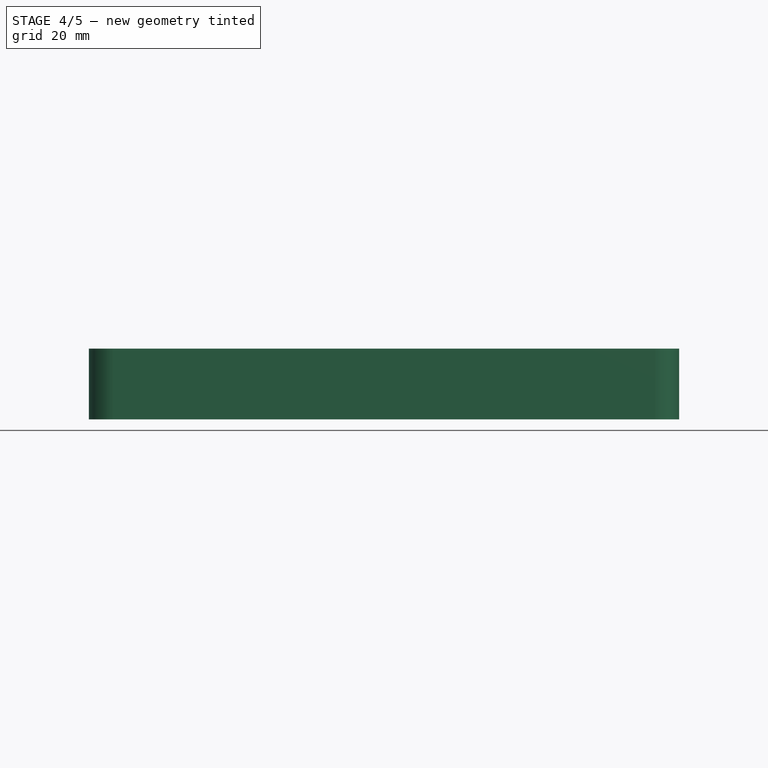
[diagram: stage 4 of 5 — front view after this stage's code; geometry added in this stage tinted green]
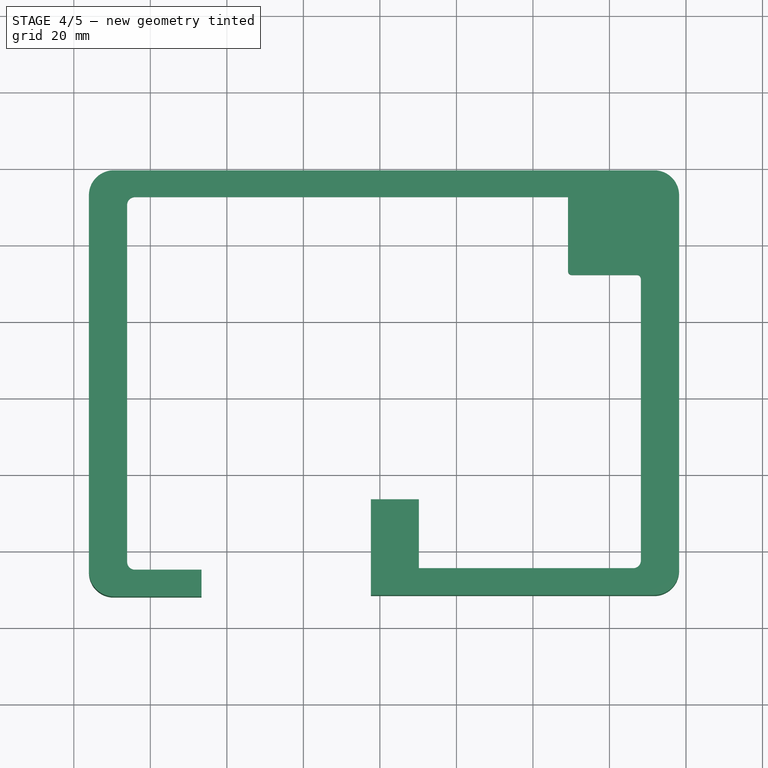
[diagram: stage 4 of 5 — top view after this stage's code; geometry added in this stage tinted green]
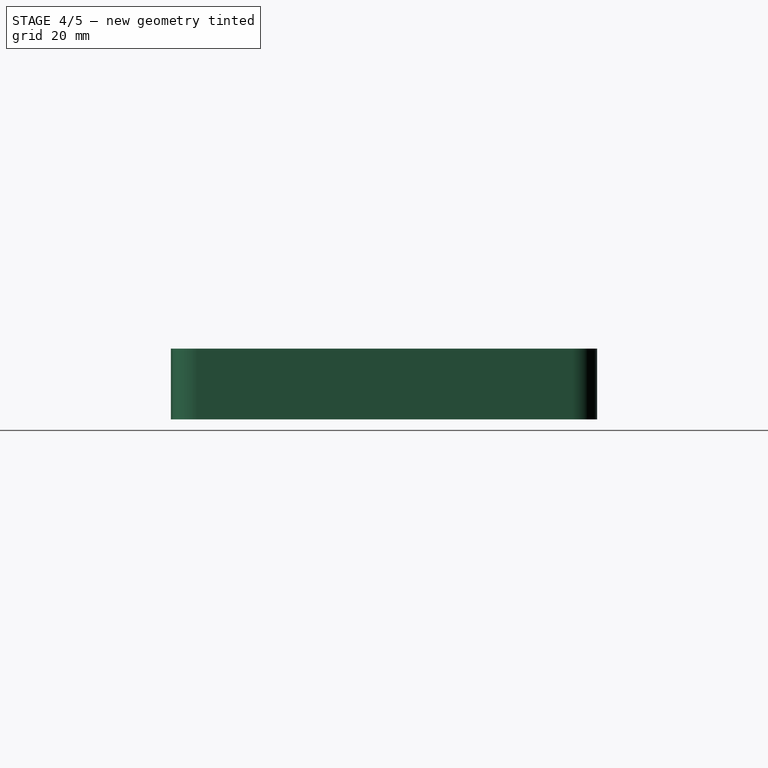
[diagram: stage 4 of 5 — right view after this stage's code; geometry added in this stage tinted green]
FEATURE [PartDesign::Point] DatumPoint
  AttacherType = Attacher::AttachEnginePoint
  AttachmentOffset = pos=(12.24,0,-5.71) rot=(0,0,1;0rad)
  AttachmentSupport = -> [Fillet003]
  MapMode = 37
  Placement = pos=(148.897,-121.89,6.69) rot=(0,0,1;0rad)
FEATURE [Measure::MeasureLength] Length004  label="Length004: 12.60 mm"
  Elements = -> [Body]
  Length = 12.6
FEATURE [Measure::MeasureLength] Length005  label="Length005: 9.40 mm"
  Elements = -> [Body]
  Length = 9.4
FEATURE [PartDesign::SubtractiveSphere] Sphere001
  Angle1 = -90
  Angle2 = 90
  Angle3 = 360
  AttacherType = Attacher::AttachEngine3D
  AttachmentOffset = pos=(0.3,0,0) rot=(0,0,1;0rad)
  AttachmentSupport = -> [DatumPoint]
  BaseFeature = -> Fillet003
  MapMode = 1
  Placement = pos=(149.197,-121.89,6.69) rot=(0,0,1;0rad)
  Radius = 1.1
  Refine = true
  Suppressed = false
FEATURE [PartDesign::PolarPattern] PolarPattern
  Angle = 360
  Axis = -> DatumLine
  BaseFeature = -> Sphere001
  Mode = 0
  Occurrences = 3
  Offset = 120
  Originals = -> [Sphere001]
  Placement = pos=(149.197,-121.89,6.69) rot=(0,0,1;0rad)
  Refine = true
  Suppressed = false
  TransformMode = 0
FEATURE [PartDesign::Body] Body001  label="TrackballCase"
  AllowCompound = false
  Group = -> [ShapeBinder,Sketch006,Pad002,Sketch007,Pocket003,Sketch008,Pocket004,Sketch009,Groove,Fillet002,Fillet003,DatumPoint,DatumLine,Sphere001,PolarPattern]
  Origin = -> Origin001
  Tip = -> PolarPattern
FEATURE [Measure::MeasureLength] Length001  label="Length001: 31.00 mm"
  Elements = -> [Body001]
  Length = 31
FEATURE [Measure::MeasureLength] Length002  label="Length002: 40.00 mm"
  Elements = -> [Body001]
  Length = 40
FEATURE [PartDesign::ShapeBinder] ShapeBinder002
  Support = -> [Body001]
  TraceSupport = false
FEATURE [Sketcher::SketchObject] Sketch010
  ArcFitTolerance = 1e-06
  AttachmentSupport = -> [XY_Plane002]
  ExternalGeometry = -> [ShapeBinder001,ShapeBinder002]
  FullyConstrained = true
  MakeInternals = false
  MapMode = 5
  sketch-geometry (20):
    g0: LineSegment StartX=90.4438 StartY=-22.6 StartZ=0 EndX=231.7 EndY=-22.6 EndZ=0
    g1: ArcOfCircle CenterX=90.4438 CenterY=-27.1001 CenterZ=0 NormalX=0 NormalY=0 NormalZ=1 AngleXU=0 Radius=4.50007 StartAngle=1.57081 EndAngle=3.1416
    g2: LineSegment StartX=85.9437 StartY=-27.1001 StartZ=0 EndX=85.9437 EndY=-125.494 EndZ=0
    g3: ArcOfCircle CenterX=90.4438 CenterY=-125.494 CenterZ=0 NormalX=0 NormalY=0 NormalZ=1 AngleXU=0 Radius=4.50007 StartAngle=3.1416 EndAngle=4.7124
    g4: LineSegment StartX=90.4439 StartY=-129.994 StartZ=0 EndX=113.359 EndY=-129.994 EndZ=0
    g5: ArcOfCircle CenterX=231.7 CenterY=-27.1 CenterZ=0 NormalX=0 NormalY=0 NormalZ=1 AngleXU=0 Radius=4.49999 StartAngle=3.63106e-08 EndAngle=1.5708
    g6: LineSegment StartX=236.2 StartY=-27.1 StartZ=0 EndX=236.2 EndY=-125.1 EndZ=0
    g7: ArcOfCircle CenterX=231.7 CenterY=-125.1 CenterZ=0 NormalX=0 NormalY=0 NormalZ=1 AngleXU=0 Radius=4.49999 StartAngle=4.71239 EndAngle=6.28319
    g8: LineSegment StartX=231.7 StartY=-129.6 StartZ=0 EndX=157.657 EndY=-129.6 EndZ=0
    g9: LineSegment StartX=157.657 StartY=-129.6 StartZ=0 EndX=157.657 EndY=-131.6 EndZ=0
    g10: LineSegment StartX=157.657 StartY=-131.6 StartZ=0 EndX=231.7 EndY=-131.6 EndZ=0
    g11: ArcOfCircle CenterX=231.7 CenterY=-125.1 CenterZ=0 NormalX=0 NormalY=0 NormalZ=1 AngleXU=0 Radius=6.49999 StartAngle=4.71239 EndAngle=6.28319
    g12: LineSegment StartX=238.2 StartY=-125.1 StartZ=0 EndX=238.2 EndY=-27.1 EndZ=0
    g13: ArcOfCircle CenterX=231.7 CenterY=-27.1 CenterZ=0 NormalX=0 NormalY=0 NormalZ=1 AngleXU=0 Radius=6.49999 StartAngle=2.51381e-08 EndAngle=1.5708
    g14: LineSegment StartX=231.7 StartY=-20.6 StartZ=0 EndX=90.4438 EndY=-20.6 EndZ=0
    g15: ArcOfCircle CenterX=90.4438 CenterY=-27.1001 CenterZ=0 NormalX=0 NormalY=0 NormalZ=1 AngleXU=0 Radius=6.50007 StartAngle=1.5708 EndAngle=3.1416
    g16: LineSegment StartX=83.9437 StartY=-27.1001 StartZ=0 EndX=83.9437 EndY=-125.494 EndZ=0
    g17: ArcOfCircle CenterX=90.4438 CenterY=-125.494 CenterZ=0 NormalX=0 NormalY=0 NormalZ=1 AngleXU=0 Radius=6.50007 StartAngle=3.1416 EndAngle=4.7124
    g18: LineSegment StartX=90.4439 StartY=-131.994 StartZ=0 EndX=113.359 EndY=-131.994 EndZ=0
    g19: LineSegment StartX=113.359 StartY=-129.994 StartZ=0 EndX=113.359 EndY=-131.994 EndZ=0
  constraints (60):
    c: Horizontal(g0)
    c: DistanceX(g0,g-18) = 0
    c: DistanceX(g0,g-6) = 0
    c: DistanceY(g-18,g0) = 0.5
    c: Angle(g1) = 1.5708
    c: Coincident(g1,g-18)
    c: Coincident(g1,g0)
    c: Coincident(g2,g1)
    c: Vertical(g2)
    c: DistanceY(g-17,g2) = 0
    c: Angle(g3) = 1.5708
    c: Coincident(g3,g-16)
    c: Coincident(g3,g2)
    c: Coincident(g4,g3)
    c: Horizontal(g4)
    c: DistanceX(g4,g-29) = 0
    c: Angle(g5) = 1.5708
    c: Coincident(g5,g-5)
    c: Coincident(g5,g0)
    c: Coincident(g6,g5)
    c: Vertical(g6)
    c: DistanceY(g6,g-12) = 0
    c: Angle(g7) = 1.5708
    c: Coincident(g7,g-12)
    c: Coincident(g7,g6)
    c: Coincident(g8,g7)
    c: Horizontal(g8)
    c: DistanceX(g-21,g8) = 1
    c: Distance(g9) = 2
    c: Coincident(g9,g8)
    c: Vertical(g9)
    c: Coincident(g10,g9)
    c: Horizontal(g10)
    c: DistanceX(g7,g10) = 0
    c: Angle(g11) = 1.5708
    c: Coincident(g11,g7)
    c: Coincident(g11,g10)
    c: Coincident(g12,g11)
    c: Vertical(g12)
    c: DistanceY(g5,g12) = 0
    c: Angle(g13) = 1.5708
    c: Coincident(g13,g5)
    c: Coincident(g13,g12)
    c: Coincident(g14,g13)
    c: Horizontal(g14)
    c: DistanceX(g14,g0) = 0
    c: Angle(g15) = 1.5708
    c: Coincident(g15,g1)
    c: Coincident(g15,g14)
    c: Coincident(g16,g15)
    c: Vertical(g16)
    c: DistanceY(g2,g16) = 0
    c: Angle(g17) = 1.5708
    c: Coincident(g17,g3)
    c: Coincident(g17,g16)
    c: Coincident(g18,g17)
    c: Horizontal(g18)
    c: DistanceX(g4,g18) = 0
    c: Coincident(g19,g4)
    c: Coincident(g19,g18)
FEATURE [PartDesign::Pad] Pad003
  Direction = (0,0,1)
  Length = 15.5
  Length2 = 10
  Profile = -> Sketch010
  ReferenceAxis = -> Sketch010 [N_Axis]
  Refine = true
  Reversed = true
  Suppressed = false
  Type = 0
FEATURE [Sketcher::SketchObject] Sketch011
  ArcFitTolerance = 1e-06
  AttachmentSupport = -> [XY_Plane002]
  ExternalGeometry = -> [Pad003]
  FullyConstrained = true
  MakeInternals = false
  MapMode = 5
  sketch-geometry (24):
    g0: LineSegment StartX=231.7 StartY=-131.6 StartZ=0 EndX=157.657 EndY=-131.6 EndZ=0
    g1: LineSegment StartX=231.7 StartY=-20.6 StartZ=0 EndX=90.4438 EndY=-20.6 EndZ=0
    g2: ArcOfCircle CenterX=90.4438 CenterY=-27.1001 CenterZ=0 NormalX=0 NormalY=0 NormalZ=1 AngleXU=0 Radius=6.50007 StartAngle=1.5708 EndAngle=3.1416
    g3: LineSegment StartX=83.9437 StartY=-27.1001 StartZ=0 EndX=83.9437 EndY=-125.494 EndZ=0
    g4: ArcOfCircle CenterX=90.4438 CenterY=-125.494 CenterZ=0 NormalX=0 NormalY=0 NormalZ=1 AngleXU=0 Radius=6.50007 StartAngle=3.1416 EndAngle=4.7124
    g5: LineSegment StartX=90.4439 StartY=-131.994 StartZ=0 EndX=113.359 EndY=-131.994 EndZ=0
    g6: LineSegment StartX=113.359 StartY=-131.994 StartZ=0 EndX=113.359 EndY=-124.994 EndZ=0
    g7: LineSegment StartX=93.9437 StartY=-29.6 StartZ=0 EndX=93.9437 EndY=-122.994 EndZ=0
    g8: LineSegment StartX=113.359 StartY=-124.994 StartZ=0 EndX=95.9437 EndY=-124.994 EndZ=0
    g9: LineSegment StartX=95.9437 StartY=-27.6 StartZ=0 EndX=209.171 EndY=-27.6 EndZ=0
    g10: ArcOfCircle CenterX=95.9437 CenterY=-122.994 CenterZ=0 NormalX=0 NormalY=0 NormalZ=1 AngleXU=0 Radius=2 StartAngle=3.14159 EndAngle=4.71239
    g11: ArcOfCircle CenterX=95.9437 CenterY=-29.6 CenterZ=0 NormalX=0 NormalY=0 NormalZ=1 AngleXU=0 Radius=2 StartAngle=1.5708 EndAngle=3.14159
    g12: LineSegment [constr] StartX=231.313 StartY=-46.9721 StartZ=0 EndX=235.313 EndY=-46.9721 EndZ=0
    g13: LineSegment StartX=227.2 StartY=-47.9721 StartZ=0 EndX=210.171 EndY=-47.9721 EndZ=0
    g14: LineSegment StartX=209.171 StartY=-27.6 StartZ=0 EndX=209.171 EndY=-46.9721 EndZ=0
    g15: ArcOfCircle CenterX=210.171 CenterY=-46.9721 CenterZ=0 NormalX=0 NormalY=0 NormalZ=1 AngleXU=0 Radius=1 StartAngle=3.14159 EndAngle=4.71239
    g16: ArcOfCircle CenterX=227.2 CenterY=-48.9721 CenterZ=0 NormalX=0 NormalY=0 NormalZ=1 AngleXU=0 Radius=1 StartAngle=3.4e-15 EndAngle=1.5708
    g17: LineSegment StartX=228.2 StartY=-48.9721 StartZ=0 EndX=228.2 EndY=-122.6 EndZ=0
    g18: ArcOfCircle CenterX=226.2 CenterY=-122.6 CenterZ=0 NormalX=0 NormalY=0 NormalZ=1 AngleXU=0 Radius=2 StartAngle=4.71239 EndAngle=6.28319
    g19: LineSegment StartX=226.2 StartY=-124.6 StartZ=0 EndX=157.657 EndY=-124.6 EndZ=0
    g20: LineSegment StartX=157.657 StartY=-124.6 StartZ=0 EndX=157.657 EndY=-131.6 EndZ=0
    g21: ArcOfCircle CenterX=231.7 CenterY=-125.1 CenterZ=0 NormalX=0 NormalY=0 NormalZ=1 AngleXU=0 Radius=6.49999 StartAngle=4.71239 EndAngle=6.28319
    g22: ArcOfCircle CenterX=231.7 CenterY=-27.1 CenterZ=0 NormalX=0 NormalY=0 NormalZ=1 AngleXU=0 Radius=6.5 StartAngle=2e-16 EndAngle=1.5708
    g23: LineSegment StartX=238.2 StartY=-27.1 StartZ=0 EndX=238.2 EndY=-125.1 EndZ=0
  constraints (77):
    c: DistanceY(g-8,g21) = 0
    c: Horizontal(g0)
    c: DistanceX(g-9,g0) = 0
    c: PointOnObject(g0,g-9)
    c: Horizontal(g1)
    c: DistanceX(g1,g-7) = 0
    c: Coincident(g2,g-6)
    c: DistanceY(g-6,g2) = 0
    c: Vertical(g3)
    c: DistanceY(g3,g-5) = 0
    c: PointOnObject(g3,g-5)
    c: Coincident(g4,g-4)
    c: Tangent(g3,g4)
    c: DistanceY(g4,g3) = 0
    c: DistanceX(g4,g-4) = 0
    c: Horizontal(g5)
    c: DistanceX(g4,g5) = 0
    c: DistanceX(g5,g-3) = 0
    c: DistanceY(g5,g4) = 0
    c: Distance(g6) = 7
    c: Coincident(g6,g5)
    c: Vertical(g6)
    c: Vertical(g7)
    c: DistanceX(g3,g7) = 10
    c: Coincident(g8,g6)
    c: Horizontal(g8)
    c: DistanceX(g7,g8) = 2
    c: Horizontal(g9)
    c: DistanceY(g9,g1) = 7
    c: DistanceY(g7,g9) = 2
    c: DistanceX(g7,g9) = 2
    c: Coincident(g11,g7)
    c: Coincident(g11,g9)
    c: Radius(g11) = 2
    c: Distance(g12) = 4
    c: Horizontal(g12)
    c: Horizontal(g13)
    c: DistanceX(g12) = 231.313
    c: DistanceY(g12) = -46.9721
    c: DistanceY(g13,g12) = 1
    c: DistanceX(g13,g22) = 11
    c: DistanceX(g9,g13) = 1
    c: Coincident(g14,g9)
    c: Vertical(g14)
    c: DistanceY(g13,g14) = 1
    c: Coincident(g15,g14)
    c: Coincident(g15,g13)
    c: Radius(g15) = 1
    c: Coincident(g16,g13)
    c: DistanceX(g13,g16) = 0
    c: Radius(g16) = 1
    c: Angle(g16) = 1.5708
    c: Coincident(g17,g16)
    c: Vertical(g17)
    c: Radius(g18) = 2
    c: Angle(g18) = 1.5708
    c: DistanceX(g19,g0) = 0
    c: Coincident(g20,g19)
    c: Coincident(g20,g0)
    c: DistanceX(g9) = 209.171
    c: Coincident(g1,g2)
    c: Tangent(g21,g0) = 1.5708
    c: Tangent(g18,g17) = 1.5708
    c: Tangent(g19,g18) = 1.5708
    c: Tangent(g10,g7) = -1.5708
    c: Tangent(g10,g8) = 1.5708
    c: DistanceY(g0,g18) = 7
    c: Coincident(g22,g1)
    c: Angle(g22) = 1.5708
    c: Radius(g22) = 6.5
    c: Coincident(g23,g21)
    c: Vertical(g23)
    c: Coincident(g23,g22)
    c: Coincident(g2,g3)
    c: DistanceX(g-10,g22) = 2
    c: DistanceY(g21,g-10) = 0
    c: DistanceX(g1,g22) = 0
FEATURE [PartDesign::Pad] Pad004
  BaseFeature = -> Pad003
  Direction = (0,0,1)
  Length = 3
  Length2 = 10
  Profile = -> Sketch011
  ReferenceAxis = -> Sketch011 [N_Axis]
  Refine = true
  Suppressed = false
  Type = 0
FEATURE [Sketcher::SketchObject] Sketch012
  ArcFitTolerance = 1e-06
  AttachmentSupport = -> [Pad004]
  ExternalGeometry = -> [Pad004]
  FullyConstrained = true
  MakeInternals = false
  MapMode = 5
  Placement = pos=(0,0,3) rot=(0,0,1;0rad)
  sketch-geometry (4):
    g0: LineSegment StartX=157.657 StartY=-124.6 StartZ=0 EndX=157.657 EndY=-106.6 EndZ=0
    g1: LineSegment StartX=170.2 StartY=-106.6 StartZ=0 EndX=170.2 EndY=-124.6 EndZ=0
    g2: LineSegment StartX=157.657 StartY=-106.6 StartZ=0 EndX=170.2 EndY=-106.6 EndZ=0
    g3: LineSegment StartX=157.657 StartY=-124.6 StartZ=0 EndX=170.2 EndY=-124.6 EndZ=0
  constraints (11):
    c: Distance(g0) = 18
    c: Coincident(g0,g-3)
    c: Vertical(g0)
    c: Vertical(g1)
    c: DistanceX(g1,g-4) = 58
    c: PointOnObject(g1,g-3)
    c: Coincident(g2,g0)
    c: Coincident(g2,g1)
    c: Horizontal(g2)
    c: Coincident(g3,g0)
    c: Coincident(g3,g1)
FEATURE [PartDesign::Pad] Pad005
  BaseFeature = -> Pad004
  Direction = (0,0,1)
  Length = 3
  Length2 = 10
  Profile = -> Sketch012
  ReferenceAxis = -> Sketch012 [N_Axis]
  Refine = true
  Reversed = true
  Suppressed = false
  Type = 0
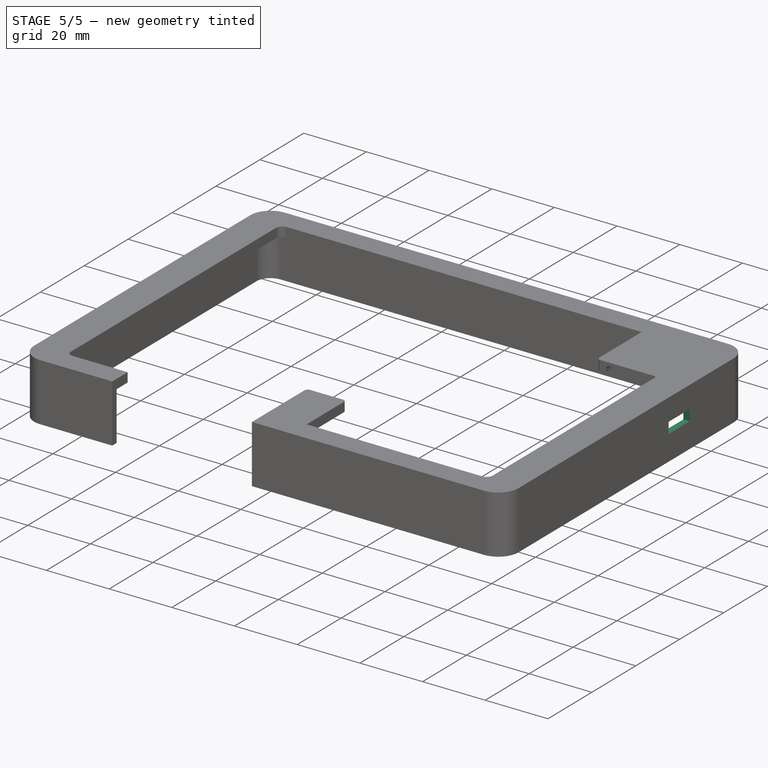
[diagram: stage 5 of 5 — iso view after this stage's code; geometry added in this stage tinted green]
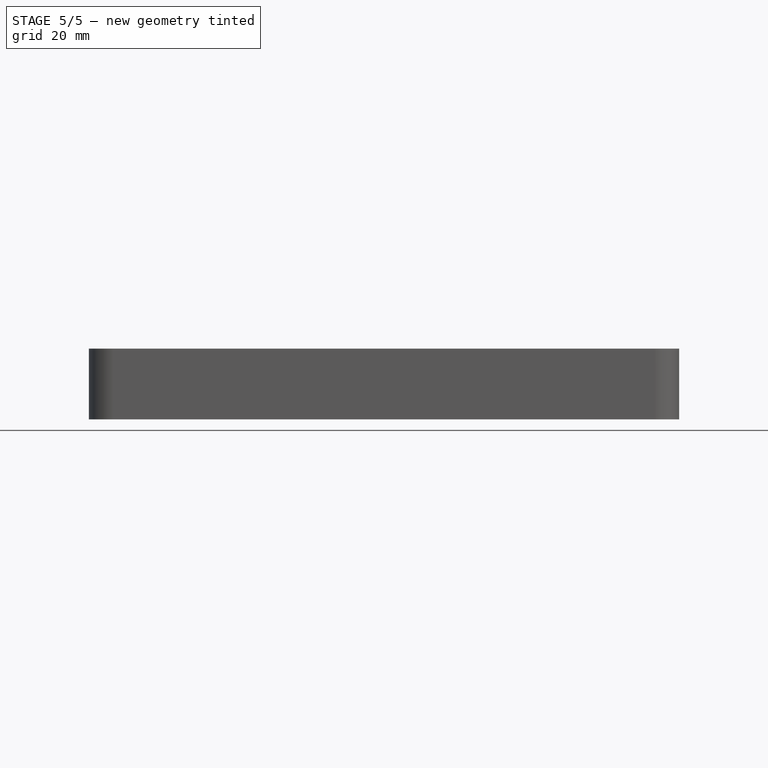
[diagram: stage 5 of 5 — front view after this stage's code; geometry added in this stage tinted green]
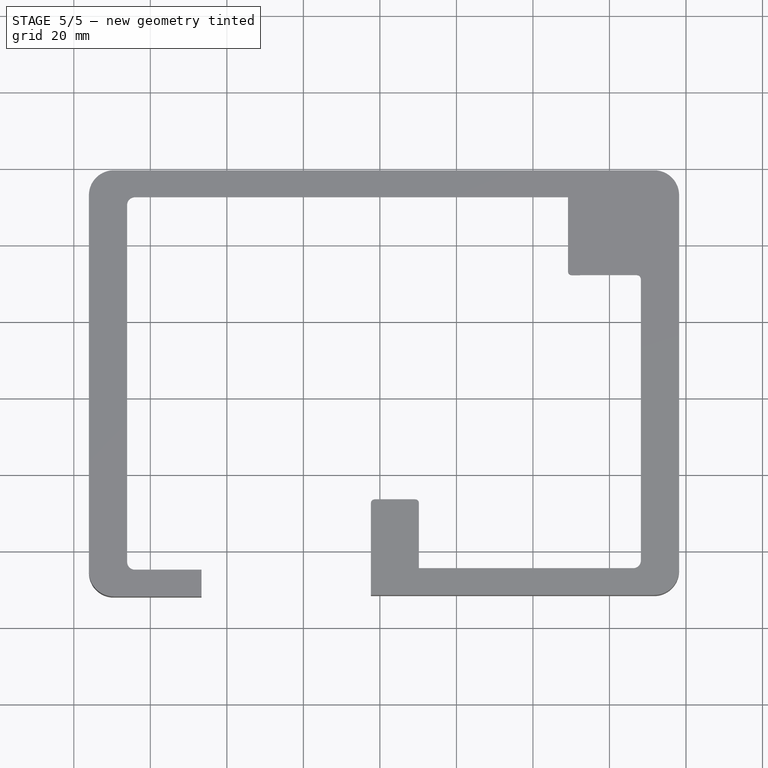
[diagram: stage 5 of 5 — top view after this stage's code; geometry added in this stage tinted green]
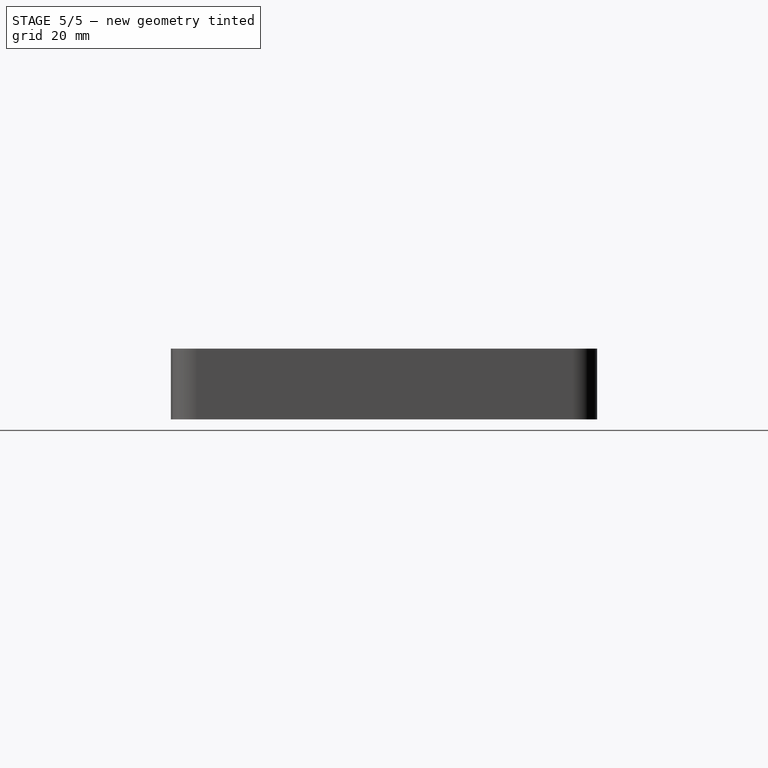
[diagram: stage 5 of 5 — right view after this stage's code; geometry added in this stage tinted green]
FEATURE [PartDesign::Fillet] Fillet004
  Base = -> Pad005 [Edge105]
  BaseFeature = -> Pad005
  Radius = 1
  Refine = true
  SupportTransform = false
  Suppressed = false
  UseAllEdges = false
FEATURE [PartDesign::Fillet] Fillet005
  Base = -> Fillet004 [Edge3]
  BaseFeature = -> Fillet004
  Radius = 1
  Refine = true
  SupportTransform = false
  Suppressed = false
  UseAllEdges = false
FEATURE [Sketcher::SketchObject] Sketch013
  ArcFitTolerance = 1e-06
  AttachmentSupport = -> [Fillet005]
  ExternalGeometry = -> [Fillet005]
  FullyConstrained = true
  MakeInternals = false
  MapMode = 5
  Placement = pos=(238.2,0,-1.3434e-12) rot=(0.57735,0.57735,0.57735;2.0944rad)
  sketch-geometry (4):
    g0: LineSegment StartX=-56.77 StartY=-4 StartZ=0 EndX=-56.77 EndY=-7.5 EndZ=0
    g1: LineSegment StartX=-56.77 StartY=-7.5 StartZ=0 EndX=-47.15 EndY=-7.5 EndZ=0
    g2: LineSegment StartX=-47.15 StartY=-7.5 StartZ=0 EndX=-47.15 EndY=-4 EndZ=0
    g3: LineSegment StartX=-47.15 StartY=-4 StartZ=0 EndX=-56.77 EndY=-4 EndZ=0
  constraints (12):
    c: Coincident(g0,g1)
    c: Coincident(g1,g2)
    c: Coincident(g2,g3)
    c: Coincident(g3,g0)
    c: Vertical(g0)
    c: Vertical(g2)
    c: Horizontal(g1)
    c: Horizontal(g3)
    c: DistanceY(g-3,g0) = 8
    c: DistanceY(g2,g-4) = 4
    c: DistanceX(g1,g-5) = 26.55
    c: DistanceX(g0,g2) = 9.62
FEATURE [PartDesign::Pocket] Pocket005
  BaseFeature = -> Fillet005
  Direction = (-1,-1e-16,5.4e-15)
  Length = 5
  Length2 = 5
  Profile = -> Sketch013
  ReferenceAxis = -> Sketch013 [N_Axis]
  Refine = true
  Suppressed = false
  Type = 0
FEATURE [Sketcher::SketchObject] Sketch014
  ArcFitTolerance = 1e-06
  AttachmentSupport = -> [Pocket005]
  ExternalGeometry = -> [Pocket005]
  FullyConstrained = true
  MakeInternals = false
  MapMode = 5
  Placement = pos=(0,-20.6,1.11e-14) rot=(0,0.707107,0.707107;3.14159rad)
  sketch-geometry (10):
    g0: LineSegment StartX=-227.2 StartY=1 StartZ=0 EndX=-227.2 EndY=-2.2 EndZ=0
    g1: LineSegment StartX=-226.2 StartY=-3.2 StartZ=0 EndX=-213.2 EndY=-3.2 EndZ=0
    g2: LineSegment StartX=-212.2 StartY=-2.2 StartZ=0 EndX=-212.2 EndY=1 EndZ=0
    g3: LineSegment StartX=-213.2 StartY=2 StartZ=0 EndX=-226.2 EndY=2 EndZ=0
    g4: ArcOfCircle CenterX=-226.2 CenterY=1 CenterZ=0 NormalX=0 NormalY=0 NormalZ=1 AngleXU=0 Radius=1 StartAngle=1.5708 EndAngle=3.14159
    g5: ArcOfCircle CenterX=-226.2 CenterY=-2.2 CenterZ=0 NormalX=0 NormalY=0 NormalZ=1 AngleXU=0 Radius=1 StartAngle=3.14159 EndAngle=4.71239
    g6: ArcOfCircle CenterX=-213.2 CenterY=-2.2 CenterZ=0 NormalX=0 NormalY=0 NormalZ=1 AngleXU=0 Radius=1 StartAngle=4.71239 EndAngle=6.28319
    g7: ArcOfCircle CenterX=-213.2 CenterY=1 CenterZ=0 NormalX=0 NormalY=0 NormalZ=1 AngleXU=0 Radius=1 StartAngle=0 EndAngle=1.5708
    g8: GeomPoint [constr] X=-227.2 Y=2 Z=0
    g9: GeomPoint [constr] X=-212.2 Y=-3.2 Z=0
  constraints (24):
    c: DistanceY(g8,g-3) = 1
    c: Tangent(g0,g4) = -1.5708
    c: Tangent(g0,g5) = -1.5708
    c: Tangent(g1,g5) = -1.5708
    c: Tangent(g1,g6) = -1.5708
    c: Tangent(g2,g6) = -1.5708
    c: Tangent(g2,g7) = -1.5708
    c: Tangent(g3,g7) = -1.5708
    c: Tangent(g3,g4) = -1.5708
    c: Vertical(g0)
    c: Vertical(g2)
    c: Horizontal(g1)
    c: Horizontal(g3)
    c: Equal(g4,g5)
    c: Equal(g6,g7)
    c: PointOnObject(g8,g0)
    c: PointOnObject(g8,g3)
    c: PointOnObject(g9,g1)
    c: PointOnObject(g9,g2)
    c: Radius(g5) = 1
    c: DistanceX(g-4,g0) = 11
    c: DistanceY(g1,g3) = 5.2
    c: Radius(g7) = 1
    c: DistanceX(g0,g2) = 15
FEATURE [PartDesign::Pocket] Pocket006
  BaseFeature = -> Pocket005
  Direction = (0,-1,2e-16)
  Length = 30
  Length2 = 5
  Profile = -> Sketch014
  ReferenceAxis = -> Sketch014 [N_Axis]
  Refine = true
  Suppressed = false
  Type = 0
FEATURE [PartDesign::Body] Body002  label="TopCover"
  AllowCompound = false
  Group = -> [Sketch010,ShapeBinder001,ShapeBinder002,Pad003,Sketch011,Binder,Pad004,Sketch012,Pad005,Fillet004,Fillet005,Sketch013,ShapeBinder003,Pocket005,Sketch014,Pocket006]
  Origin = -> Origin002
  Tip = -> Pocket006
FEATURE [Measure::MeasureLength] Length006  label="Length006: 3.20 mm"
  Elements = -> [Body]
  Length = 3.2
FEATURE [Measure::MeasureDistance] Distance  label="Distance: 5.00 mm"
  Distance = 5
  DistanceX = 0
  DistanceY = 5
  DistanceZ = 0
  Element1 = -> Body002 [Pocket006.Edge125]
  Element2 = -> Body002 [Pocket006.Edge97]
  Position1 = (95.9437,-22.6,0)
  Position2 = (95.9437,-27.6,0)
FEATURE [Measure::MeasureDistance] Distance001  label="Distance001: 8.00 mm"
  Distance = 8
  DistanceX = 8
  DistanceY = 0
  DistanceZ = 0
  Element1 = -> Body002 [Pocket006.Edge151]
  Element2 = -> Body002 [Pocket006.Edge105]
  Position1 = (85.9437,-29.6,0)
  Position2 = (93.9437,-29.6,0)
FEATURE [Measure::MeasureDistance] Distance002  label="Distance002: 13.50 mm"
  Distance = 13.5
  DistanceX = 0
  DistanceY = 0
  DistanceZ = 13.5
  Element1 = -> Body001 [Groove.Edge16]
  Element2 = -> Body001 [Groove.Edge29]
  Position1 = (156.657,-112.14,12.4)
  Position2 = (156.657,-112.14,-1.1)
FEATURE [App::DocumentObjectGroup] Measurements
  Group = -> [Length,Length001,Length002,Length003,Length004,Length005,Length006,Distance,Distance001,Distance002]
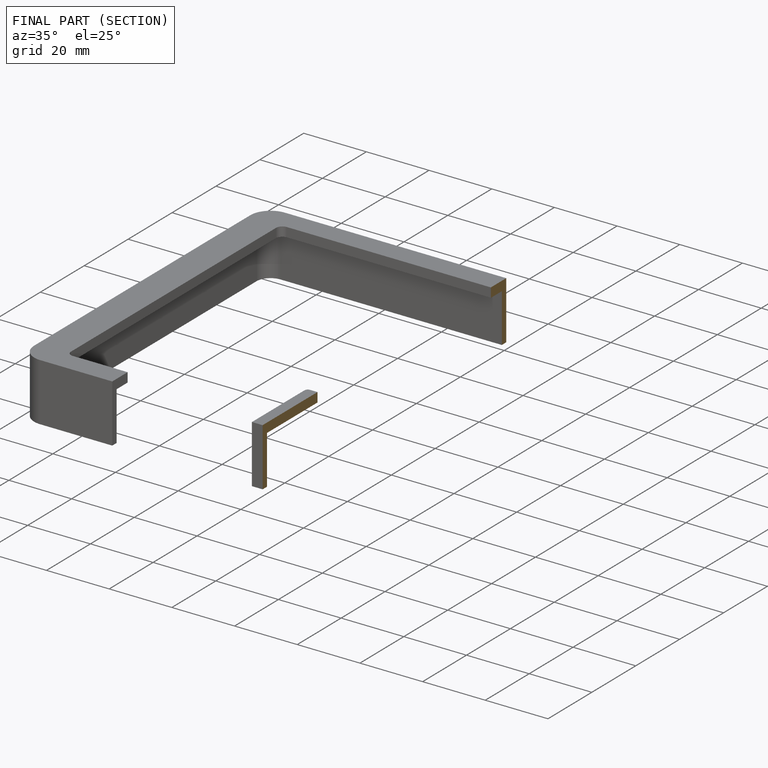
[diagram: finished part — half-section view (interior)]
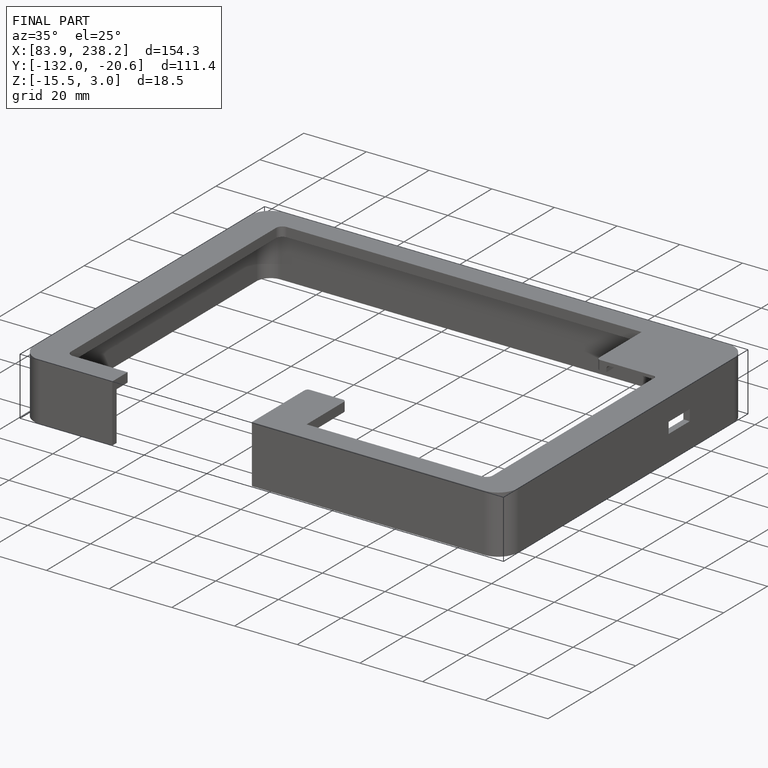
[diagram: finished part — iso view with bounding-box wireframe]
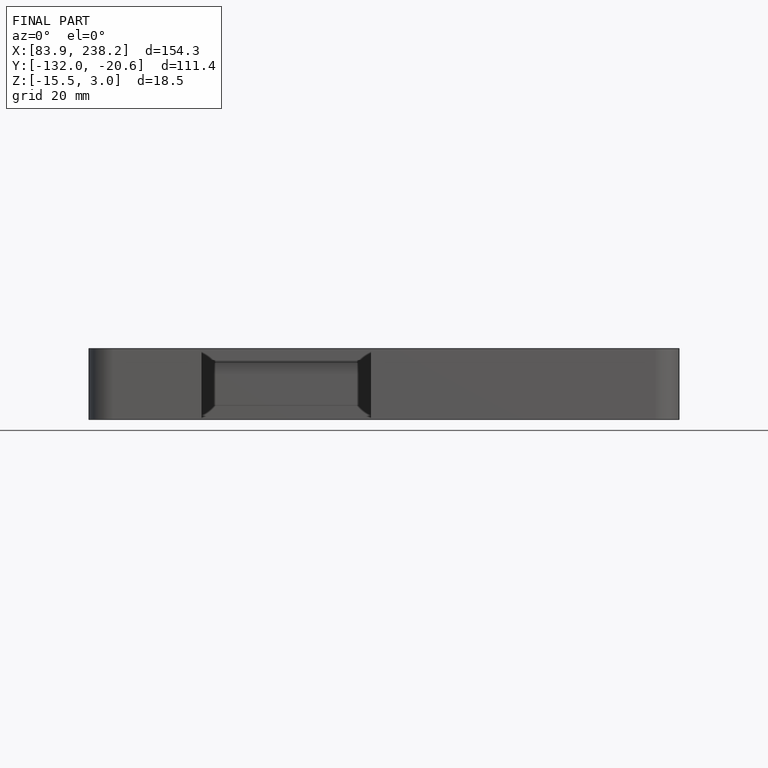
[diagram: finished part — front view with bounding-box wireframe]
